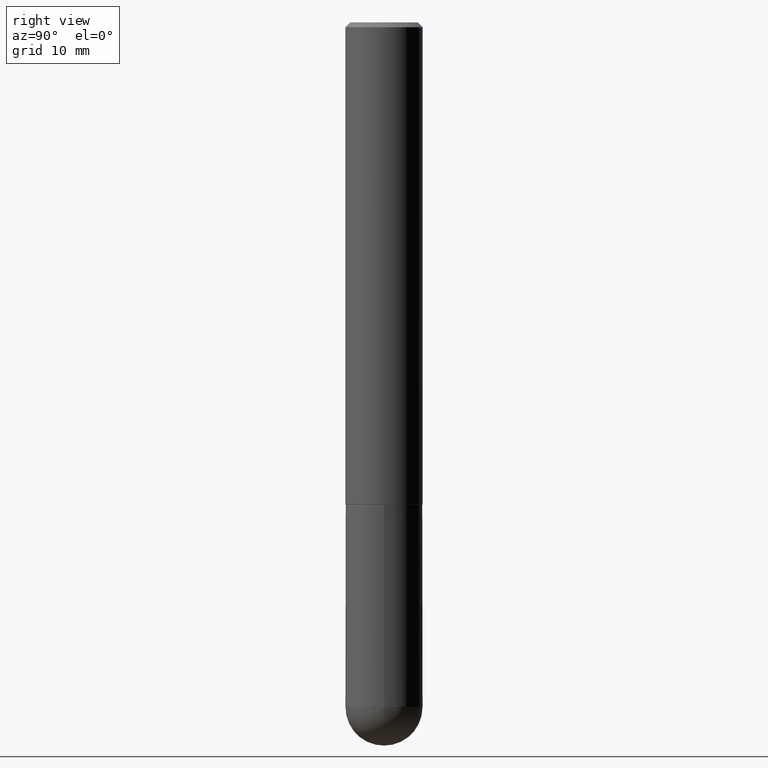
[diagram: clean part render]
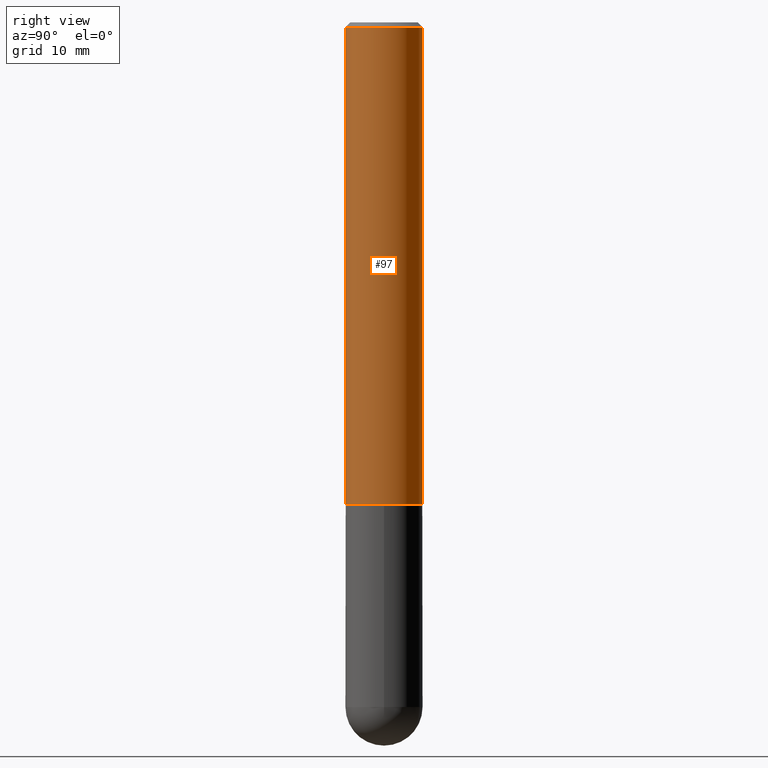
[diagram: same view with one face highlighted and labeled with its STEP entity id]
A machine part, right view. The second image highlights one B-rep face of the part: STEP entity #97.
In plain terms, the highlighted cylindrical surface (partial cylindrical patch) has radius 4.0005 mm, axis along (-0, 0, 1).
Its self-contained STEP definition (entity closure, byte-faithful):
#12 = DIRECTION ( 'NONE',  ( -2.454661074152089475E-29, 3.478317487923067824E-15, 1.000000000000000000 ) ) ;
#17 = DIRECTION ( 'NONE',  ( -2.454661074152089475E-29, 3.478317487923067824E-15, 1.000000000000000000 ) ) ;
#51 = CIRCLE ( 'NONE', #104, 0.1575000000000001954 ) ;
#52 = CARTESIAN_POINT ( 'NONE',  ( -1.099816621735539951E-15, -0.1575000000000070233, -1.967499999999999138 ) ) ;
#66 = ORIENTED_EDGE ( 'NONE', *, *, #391, .F. ) ;
#82 = FACE_OUTER_BOUND ( 'NONE', #349, .T. ) ;
#84 = LINE ( 'NONE', #143, #141 ) ;
#92 = EDGE_CURVE ( 'NONE', #95, #139, #171, .T. ) ;
#95 = VERTEX_POINT ( 'NONE', #200 ) ;
#97 = ADVANCED_FACE ( 'NONE', ( #82 ), #183, .T. ) ;
#104 = AXIS2_PLACEMENT_3D ( 'NONE', #269, #298, #292 ) ;
#125 = CARTESIAN_POINT ( 'NONE',  ( 4.909322148304186412E-31, -6.956634975846147087E-17, -0.02000000000000003511 ) ) ;
#139 = VERTEX_POINT ( 'NONE', #360 ) ;
#141 = VECTOR ( 'NONE', #279, 39.37007874015748143 ) ;
#143 = CARTESIAN_POINT ( 'NONE',  ( 1.119104808822158195E-15, 0.1575000000000000844, -5.478350043478835531E-16 ) ) ;
#146 = ORIENTED_EDGE ( 'NONE', *, *, #325, .T. ) ;
#153 = ORIENTED_EDGE ( 'NONE', *, *, #214, .T. ) ;
#171 = CIRCLE ( 'NONE', #312, 0.1574999999999999456 ) ;
#183 = CYLINDRICAL_SURFACE ( 'NONE', #283, 0.1575000000000000844 ) ;
#186 = ORIENTED_EDGE ( 'NONE', *, *, #92, .F. ) ;
#200 = CARTESIAN_POINT ( 'NONE',  ( -1.080528434649015385E-15, -0.1575000000000000289, -0.01999999999999948694 ) ) ;
#213 = DIRECTION ( 'NONE',  ( -6.982962677686265922E-15, -1.000000000000000000, 3.478317487923068219E-15 ) ) ;
#214 = EDGE_CURVE ( 'NONE', #407, #139, #84, .T. ) ;
#269 = CARTESIAN_POINT ( 'NONE',  ( 4.829545663394234809E-29, -6.843589657488634193E-15, -1.967499999999999805 ) ) ;
#279 = DIRECTION ( 'NONE',  ( -2.454661074152089475E-29, 3.478317487923067824E-15, 1.000000000000000000 ) ) ;
#283 = AXIS2_PLACEMENT_3D ( 'NONE', #296, #17, #213 ) ;
#292 = DIRECTION ( 'NONE',  ( -6.982962677686265922E-15, -1.000000000000000000, 3.469013325287948955E-15 ) ) ;
#296 = CARTESIAN_POINT ( 'NONE',  ( 0.000000000000000000, 0.000000000000000000, 0.000000000000000000 ) ) ;
#298 = DIRECTION ( 'NONE',  ( -2.454661074152089475E-29, 3.478317487923067824E-15, 1.000000000000000000 ) ) ;
#312 = AXIS2_PLACEMENT_3D ( 'NONE', #125, #12, #358 ) ;
#325 = EDGE_CURVE ( 'NONE', #339, #407, #51, .T. ) ;
#328 = LINE ( 'NONE', #412, #396 ) ;
#339 = VERTEX_POINT ( 'NONE', #52 ) ;
#349 = EDGE_LOOP ( 'NONE', ( #146, #153, #186, #66 ) ) ;
#358 = DIRECTION ( 'NONE',  ( -6.982962677686265922E-15, -1.000000000000000000, 3.469013325287954477E-15 ) ) ;
#360 = CARTESIAN_POINT ( 'NONE',  ( 1.099816621735586889E-15, 0.1574999999999998901, -0.02000000000000057981 ) ) ;
#363 = CARTESIAN_POINT ( 'NONE',  ( 1.119104808822183044E-15, 0.1574999999999933675, -1.967500000000000249 ) ) ;
#379 = DIRECTION ( 'NONE',  ( -2.454661074152089475E-29, 3.478317487923067824E-15, 1.000000000000000000 ) ) ;
#391 = EDGE_CURVE ( 'NONE', #339, #95, #328, .T. ) ;
#396 = VECTOR ( 'NONE', #379, 39.37007874015748143 ) ;
#407 = VERTEX_POINT ( 'NONE', #363 ) ;
#412 = CARTESIAN_POINT ( 'NONE',  ( -1.099816621735587480E-15, -0.1575000000000000844, 5.478350043478835531E-16 ) ) ;